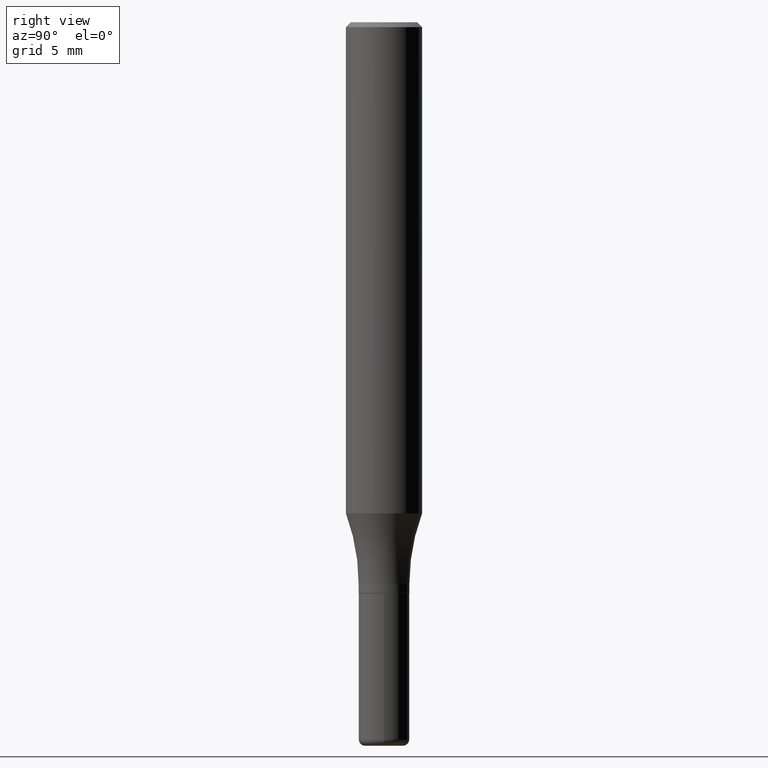
[diagram: clean part render]
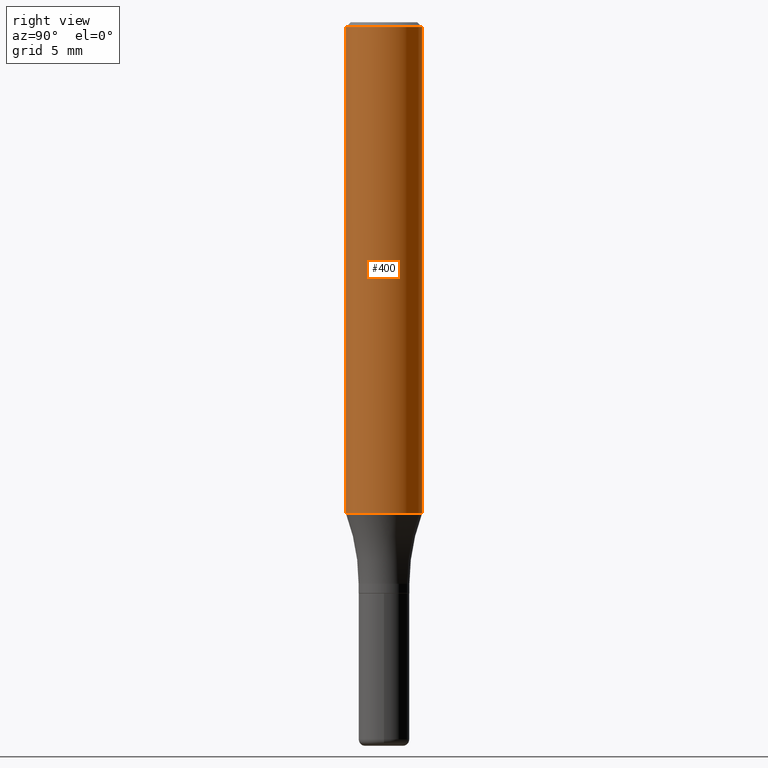
[diagram: same view with one face highlighted and labeled with its STEP entity id]
A machine part, right view. The second image highlights one B-rep face of the part: STEP entity #400.
In plain terms, the highlighted cylindrical surface (partial cylindrical patch) has radius 2.9997 mm, axis along (-0, 0, 1).
Its self-contained STEP definition (entity closure, byte-faithful):
#41 = DIRECTION ( 'NONE',  ( -2.444978007270708003E-29, 3.492184190823146687E-15, 1.000000000000000000 ) ) ;
#50 = VECTOR ( 'NONE', #474, 39.37007874015748143 ) ;
#56 = CARTESIAN_POINT ( 'NONE',  ( 3.724768054275150993E-29, -5.320119884490468606E-15, -1.523436220366273686 ) ) ;
#82 = DIRECTION ( 'NONE',  ( -6.982962677686265922E-15, -1.000000000000000000, 3.492184190823147082E-15 ) ) ;
#88 = ORIENTED_EDGE ( 'NONE', *, *, #388, .T. ) ;
#116 = DIRECTION ( 'NONE',  ( -6.982962677686265922E-15, -1.000000000000000000, 3.487819265831411744E-15 ) ) ;
#118 = CARTESIAN_POINT ( 'NONE',  ( 0.000000000000000000, 0.000000000000000000, 0.000000000000000000 ) ) ;
#122 = VERTEX_POINT ( 'NONE', #283 ) ;
#127 = VERTEX_POINT ( 'NONE', #137 ) ;
#137 = CARTESIAN_POINT ( 'NONE',  ( -8.246878922347104959E-16, -0.1181000000000053535, -1.523436220366273020 ) ) ;
#151 = AXIS2_PLACEMENT_3D ( 'NONE', #276, #153, #116 ) ;
#153 = DIRECTION ( 'NONE',  ( -2.444978007270708003E-29, 3.492184190823146687E-15, 1.000000000000000000 ) ) ;
#168 = ORIENTED_EDGE ( 'NONE', *, *, #267, .F. ) ;
#197 = LINE ( 'NONE', #395, #50 ) ;
#200 = DIRECTION ( 'NONE',  ( -2.444978007270708003E-29, 3.492184190823146687E-15, 1.000000000000000000 ) ) ;
#214 = VERTEX_POINT ( 'NONE', #347 ) ;
#232 = AXIS2_PLACEMENT_3D ( 'NONE', #56, #253, #450 ) ;
#253 = DIRECTION ( 'NONE',  ( -2.444978007270708003E-29, 3.492184190823146687E-15, 1.000000000000000000 ) ) ;
#267 = EDGE_CURVE ( 'NONE', #214, #122, #357, .T. ) ;
#276 = CARTESIAN_POINT ( 'NONE',  ( 3.667467010905984653E-31, -5.238276286234609492E-17, -0.01499999999999968373 ) ) ;
#281 = EDGE_LOOP ( 'NONE', ( #328, #88, #168, #382 ) ) ;
#283 = CARTESIAN_POINT ( 'NONE',  ( 8.246878922347483612E-16, 0.1180999999999999411, -0.01500000000000009659 ) ) ;
#328 = ORIENTED_EDGE ( 'NONE', *, *, #478, .T. ) ;
#347 = CARTESIAN_POINT ( 'NONE',  ( -8.102248135368174406E-16, -0.1181000000000000522, -0.01499999999999927260 ) ) ;
#348 = EDGE_CURVE ( 'NONE', #127, #214, #197, .T. ) ;
#357 = CIRCLE ( 'NONE', #151, 0.1180999999999999966 ) ;
#376 = VECTOR ( 'NONE', #200, 39.37007874015748143 ) ;
#382 = ORIENTED_EDGE ( 'NONE', *, *, #348, .F. ) ;
#388 = EDGE_CURVE ( 'NONE', #496, #122, #485, .T. ) ;
#392 = CYLINDRICAL_SURFACE ( 'NONE', #396, 0.1181000000000000105 ) ;
#395 = CARTESIAN_POINT ( 'NONE',  ( -8.246878922347480654E-16, -0.1181000000000000105, 4.124269529362136880E-16 ) ) ;
#396 = AXIS2_PLACEMENT_3D ( 'NONE', #118, #41, #82 ) ;
#398 = FACE_OUTER_BOUND ( 'NONE', #281, .T. ) ;
#400 = ADVANCED_FACE ( 'NONE', ( #398 ), #392, .T. ) ;
#437 = CARTESIAN_POINT ( 'NONE',  ( 8.391509709326782957E-16, 0.1181000000000000105, -4.124269529362136880E-16 ) ) ;
#450 = DIRECTION ( 'NONE',  ( -6.982962677686265922E-15, -1.000000000000000000, 4.626330217890367758E-15 ) ) ;
#468 = CIRCLE ( 'NONE', #232, 0.1181000000000000383 ) ;
#474 = DIRECTION ( 'NONE',  ( -2.444978007270708003E-29, 3.492184190823146687E-15, 1.000000000000000000 ) ) ;
#478 = EDGE_CURVE ( 'NONE', #127, #496, #468, .T. ) ;
#485 = LINE ( 'NONE', #437, #376 ) ;
#496 = VERTEX_POINT ( 'NONE', #500 ) ;
#500 = CARTESIAN_POINT ( 'NONE',  ( 8.391509709327157666E-16, 0.1180999999999946398, -1.523436220366274130 ) ) ;